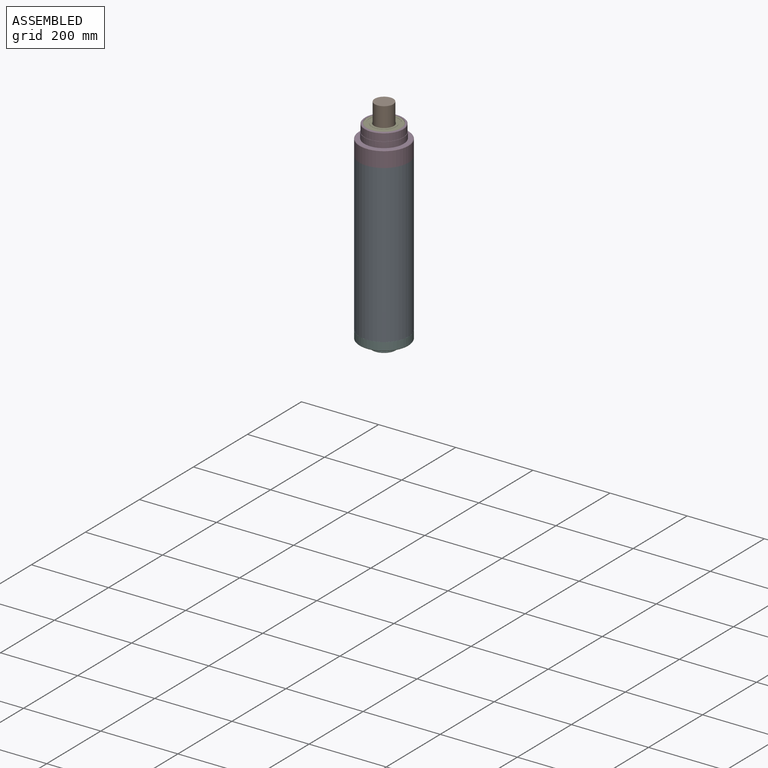
[diagram: assembled view]
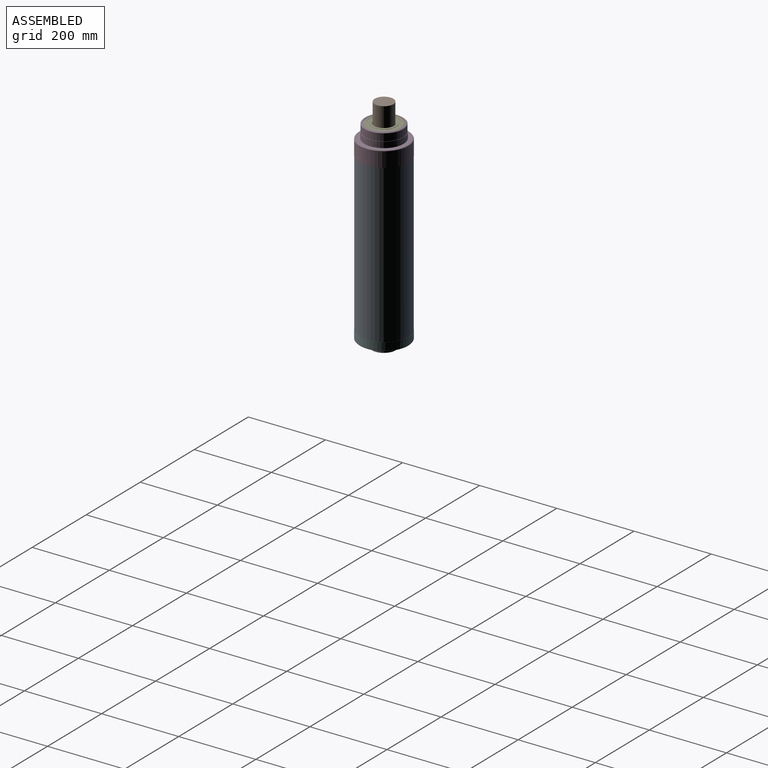
[diagram: assembled view, second angle]
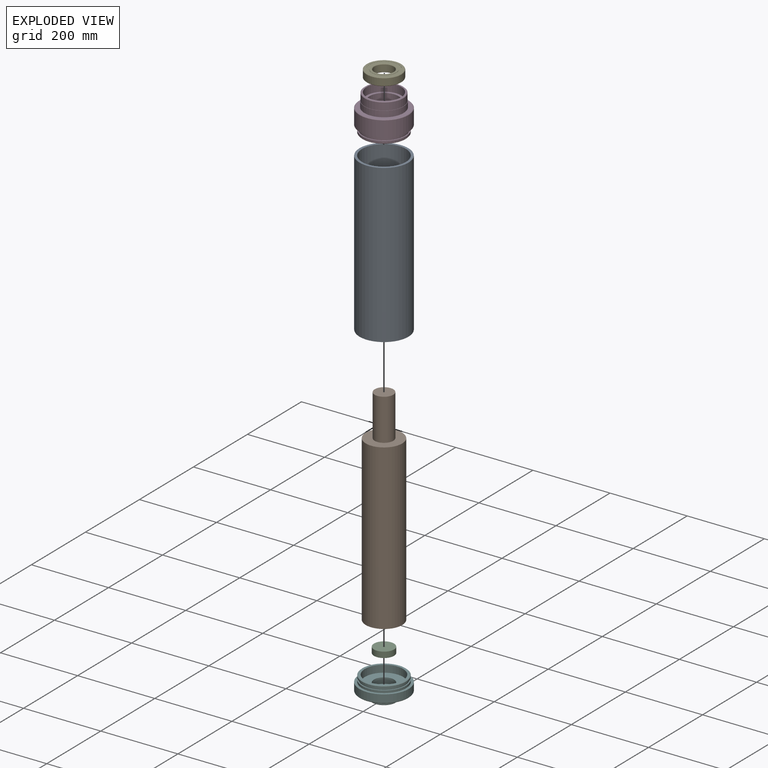
[diagram: exploded view]
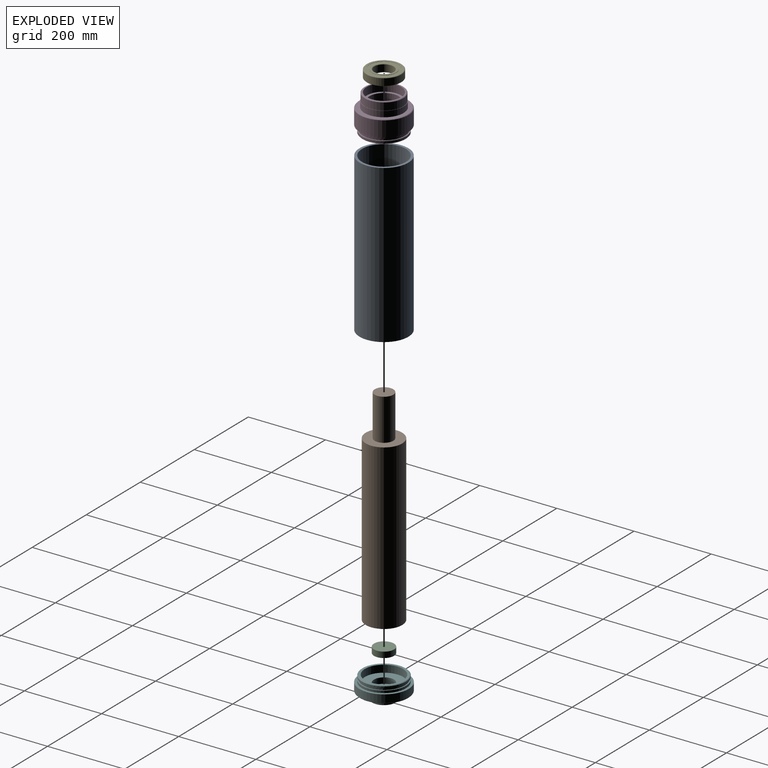
[diagram: exploded view, second angle]
ASSEMBLY  parts=6 mates=10
PART A: 4 faces, bbox 126.7x126.7x408 mm
  f0: cylinder r=57mm len=407.99mm, axis (0,0,-1), area 146111.1mm2, adj f2,f3
  f1: cylinder r=63.37mm len=407.99mm, axis (0,0,-1), area 162454.2mm2, adj f2,f3
  f2: plane 126.75x126.75mm, normal (0,0,1), area 2410.9mm2, adj f0,f1
  f3: plane 126.75x126.75mm, normal (0,0,-1), area 2410.9mm2, adj f0,f1
PART B: 9 faces, bbox 94.6x94.6x549.3 mm
  f0: cylinder r=47.31mm len=425.45mm, axis (0,0,-1), area 126461.5mm2, adj f1,f2
  f1: plane 94.62x94.62mm, normal (0,0,1), area 5201.7mm2, adj f0,f3
  f2: plane 94.62x94.62mm, normal (0,0,-1), area 6192.5mm2, adj f0,f5
  f3: cylinder r=24.13mm len=107.95mm, axis (0,0,-1), area 16366.7mm2, adj f1,f4
  f4: plane 48.26x48.26mm, normal (0,0,1), area 1829.2mm2, adj f3
  f5: cylinder r=16.34mm len=32.67mm, axis (0,0,1), area 286.8mm2, adj f2,f6
  f6: plane 32.67x32.67mm, normal (0,0,-1), area 349.7mm2, adj f5,f7
  f7: cylinder r=12.47mm len=24.94mm, axis (0,0,1), area 1025mm2, adj f6,f8
  f8: plane 24.94x24.94mm, normal (0,0,-1), area 488.6mm2, adj f7
PART C: 4 faces, bbox 52x52x15 mm
  f0: cylinder r=2mm len=15mm, axis (0,0,-1), area 188.5mm2, adj f2,f3
  f1: cylinder r=26mm len=52mm, axis (0,0,-1), area 2450.4mm2, adj f2,f3
  f2: plane 52x52mm, normal (0,0,1), area 2111.2mm2, adj f0,f1
  f3: plane 52x52mm, normal (0,0,-1), area 2111.2mm2, adj f0,f1
PART D: 21 faces, bbox 127x127x95.3 mm
  f0: plane 89.81x89.81mm, normal (0,0,1), area 1775.1mm2, adj f1,f17
  f1: cylinder r=44.91mm len=89.81mm, axis (0,0,1), area 5643.2mm2, adj f0,f2
  f2: plane 97.54x97.54mm, normal (0,0,1), area 1136.2mm2, adj f1,f19
  f3: cylinder r=50.04mm len=100.08mm, axis (0,0,1), area 5989.3mm2, adj f4,f19
  f4: plane 101.6x101.6mm, normal (0,0,1), area 241.4mm2, adj f3,f5
  f5: cylinder r=50.8mm len=101.6mm, axis (0,0,1), area 4864.4mm2, adj f4,f6
  f6: plane 124.46x124.46mm, normal (0,0,1), area 4058.7mm2, adj f5,f20
  f7: cylinder r=63.5mm len=127mm, axis (0,0,1), area 15707.9mm2, adj f8,f20
  f8: plane 127x127mm, normal (0,0,-1), area 2479.7mm2, adj f7,f9
  f9: cylinder r=56.95mm len=113.89mm, axis (0,0,1), area 2522mm2, adj f8,f10
  f10: plane 113.89x113.89mm, normal (0,0,-1), area 975.2mm2, adj f9,f11
  f11: cylinder r=54.15mm len=108.31mm, axis (0,0,1), area 1685.3mm2, adj f10,f12
  f12: plane 113.89x113.89mm, normal (0,0,1), area 975.2mm2, adj f11,f13
  f13: cylinder r=56.95mm len=113.89mm, axis (0,0,1), area 2067.6mm2, adj f12,f18
  f14: plane 111.35x111.35mm, normal (0,0,-1), area 2031.6mm2, adj f15,f18
  f15: cylinder r=49.53mm len=99.06mm, axis (0,0,1), area 15513.6mm2, adj f14,f16
  f16: plane 99.06x99.06mm, normal (0,0,-1), area 3146.7mm2, adj f15,f17
  f17: cylinder r=38.1mm len=76.2mm, axis (0,0,1), area 6080.5mm2, adj f0,f16
  f18: cone r=56.95mm half-angle=45deg, axis (0,0,1), area 635.5mm2, adj f13,f14
  f19: cone r=48.77mm half-angle=45deg, axis (0,0,-1), area 557.5mm2, adj f2,f3
  f20: cone r=62.23mm half-angle=45deg, axis (0,0,-1), area 709.4mm2, adj f6,f7
PART E: 24 faces, bbox 90x20x90 mm
  f0: plane 76.15x76.15mm, normal (0,-1,0), area 1353.3mm2, adj f1,f2
  f1: cylinder r=38.08mm len=76.15mm, axis (0,-1,0), area 119.6mm2, adj f0,f8
  f2: cylinder r=31.92mm len=63.85mm, axis (0,-1,0), area 100.3mm2, adj f0,f10
  f3: cylinder r=38.08mm len=76.15mm, axis (0,-1,0), area 119.6mm2, adj f7,f15
  f4: cone r=45mm half-angle=45deg, axis (0,1,0), area 395.4mm2, adj f5,f8
  f5: cylinder r=45mm len=90mm, axis (0,-1,0), area 5089.4mm2, adj f4,f6
  f6: cone r=44mm half-angle=45deg, axis (0,-1,0), area 395.4mm2, adj f5,f7
  f7: plane 88x88mm, normal (0,1,0), area 1527.3mm2, adj f3,f6
  f8: plane 88x88mm, normal (0,-1,0), area 1527.3mm2, adj f1,f4
  f9: cylinder r=31.92mm len=63.85mm, axis (0,-1,0), area 100.3mm2, adj f11,f15
  f10: plane 63.85x63.85mm, normal (0,-1,0), area 1077.8mm2, adj f2,f14
  f11: plane 63.85x63.85mm, normal (0,1,0), area 1077.8mm2, adj f9,f12
  f12: cone r=25mm half-angle=45deg, axis (0,1,0), area 226.6mm2, adj f11,f13
  f13: cylinder r=25mm len=50mm, axis (0,-1,0), area 2827.4mm2, adj f12,f14
  f14: cone r=26mm half-angle=45deg, axis (0,-1,0), area 226.6mm2, adj f10,f13
  f15: plane 76.15x76.15mm, normal (0,1,0), area 1353.3mm2, adj f3,f9
  f16: plane 76.15x76.15mm, normal (0,1,0), area 1353.3mm2, adj f19,f23
  f17: cylinder r=38.08mm len=76.15mm, axis (0,-1,0), area 230mm2, adj f18,f20
  f18: torus R=35mm, axis (0,-1,0), area 2596.8mm2, adj f17,f19
  f19: cylinder r=38.08mm len=76.15mm, axis (0,-1,0), area 230mm2, adj f16,f18
  f20: plane 76.15x76.15mm, normal (0,-1,0), area 1353.3mm2, adj f17,f21
  f21: cylinder r=31.92mm len=63.85mm, axis (0,-1,0), area 192.8mm2, adj f20,f22
  f22: torus R=35mm, axis (0,-1,0), area 1993mm2, adj f21,f23
  f23: cylinder r=31.92mm len=63.85mm, axis (0,-1,0), area 192.8mm2, adj f16,f22
PART F: 21 faces, bbox 127x127x57.5 mm
  f0: plane 52.02x52.02mm, normal (0,0,1), area 2125.3mm2, adj f1
  f1: cylinder r=26.01mm len=52.02mm, axis (0,0,-1), area 2428.3mm2, adj f0,f2
  f2: plane 99.06x99.06mm, normal (0,0,1), area 5581.7mm2, adj f1,f3
  f3: cylinder r=49.53mm len=99.06mm, axis (0,0,-1), area 5809.9mm2, adj f2,f4
  f4: plane 111.35x111.35mm, normal (0,0,1), area 2031.6mm2, adj f3,f17
  f5: cylinder r=56.95mm len=113.89mm, axis (0,0,-1), area 1681.3mm2, adj f6,f17
  f6: plane 113.89x113.89mm, normal (0,0,-1), area 975.2mm2, adj f5,f7
  f7: cylinder r=54.15mm len=108.31mm, axis (0,0,-1), area 1685.3mm2, adj f6,f8
  f8: plane 113.89x113.89mm, normal (0,0,1), area 975.2mm2, adj f7,f9
  f9: cylinder r=56.95mm len=113.89mm, axis (0,0,-1), area 2135.8mm2, adj f8,f10
  f10: plane 127x127mm, normal (0,0,1), area 2479.7mm2, adj f9,f11
  f11: cylinder r=63.5mm len=127mm, axis (0,0,-1), area 8107.3mm2, adj f10,f19
  f12: plane 124.46x124.46mm, normal (0,0,-1), area 8999.1mm2, adj f13,f19
  f13: cylinder r=31.75mm len=63.5mm, axis (0,0,-1), area 3547mm2, adj f12,f18
  f14: plane 60.96x60.96mm, normal (0,0,-1), area 580.7mm2, adj f18,f20
  f15: cylinder r=26.01mm len=52.02mm, axis (0,0,-1), area 2220.8mm2, adj f16,f20
  f16: plane 52.02x52.02mm, normal (0,0,-1), area 2125.3mm2, adj f15
  f17: cone r=56.95mm half-angle=45deg, axis (0,0,-1), area 635.5mm2, adj f4,f5
  f18: cone r=30.48mm half-angle=45deg, axis (0,0,1), area 351.1mm2, adj f13,f14
  f19: cone r=62.23mm half-angle=45deg, axis (0,0,1), area 709.4mm2, adj f11,f12
  f20: cone r=26.01mm half-angle=45deg, axis (0,0,-1), area 300.7mm2, adj f14,f15
PLACE A t=(11.9,60.59,-123.41)mm fixed
PLACE B rot(axis=(0,0,1),0deg) t=(11.9,60.59,-122.39)mm
PLACE C t=(11.9,60.59,-140.19)mm
PLACE D rot(axis=(0,0,1),180deg) t=(11.9,60.59,299.98)mm
PLACE E rot(axis=(-0.83,-0.39,0.39),100.3deg) t=(11.9,60.59,350.78)mm
PLACE F t=(11.9,60.59,-128.47)mm
MATE fastened B.f5 <-> C.f1  axis (0,0,-1) through (11.9,60.59,-125.19)mm
MATE planar E.f1 <-> D.f1  axis (0,0,-1) through (11.9,60.59,340.78)mm
MATE cylindrical F.f1 <-> A.f0  axis (0,0,1) through (11.9,60.59,-106.52)mm
MATE cylindrical A.f0 <-> D.f1  axis (0,0,-1) through (11.9,60.59,284.58)mm
MATE fastened F.f1 <-> A.f1  axis (0,0,1) through (11.9,60.59,-123.41)mm
MATE cylindrical E.f1 <-> D.f1  axis (0,0,1) through (11.9,60.59,359.78)mm
MATE cylindrical C.f1 <-> F.f1  axis (0,0,-1) through (11.9,60.59,-140.19)mm
MATE fastened C.f1 <-> F.f1  axis (0,0,1) through (11.9,60.59,-125.19)mm
MATE planar D.f1 <-> A.f1  axis (0,0,-1) through (11.9,60.59,284.58)mm
MATE cylindrical B.f5 <-> C.f0  axis (0,0,-1) through (11.9,60.59,-125.19)mm
